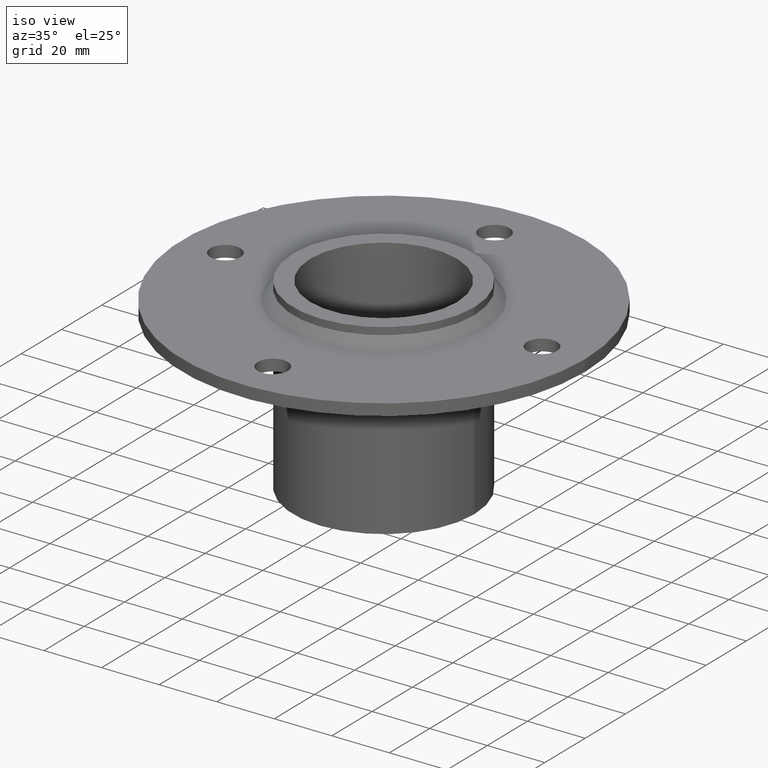
[diagram: clean part render]
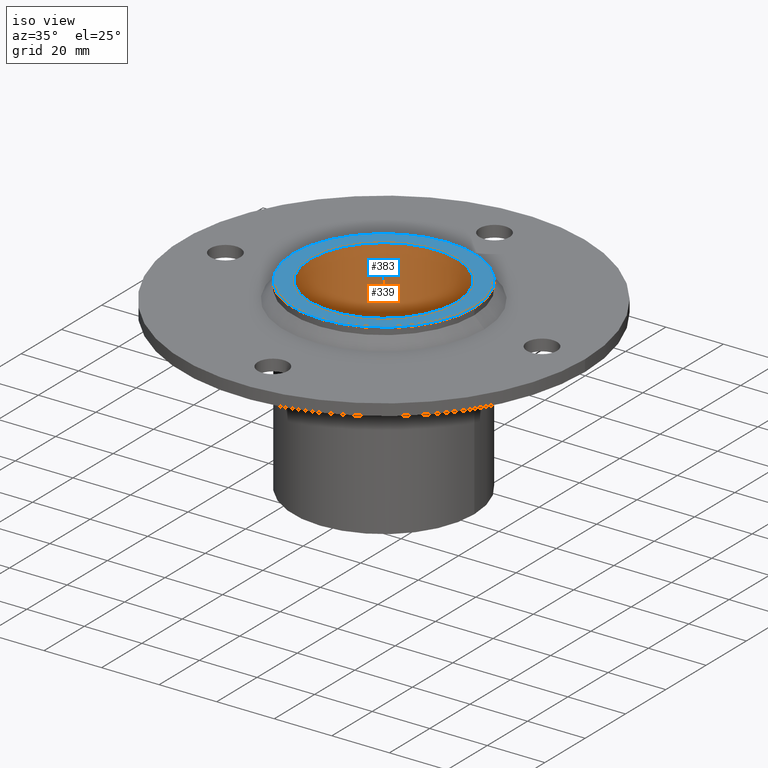
[diagram: same view with the hole feature highlighted: cylindrical wall and planar end face, labeled with their STEP entity ids]
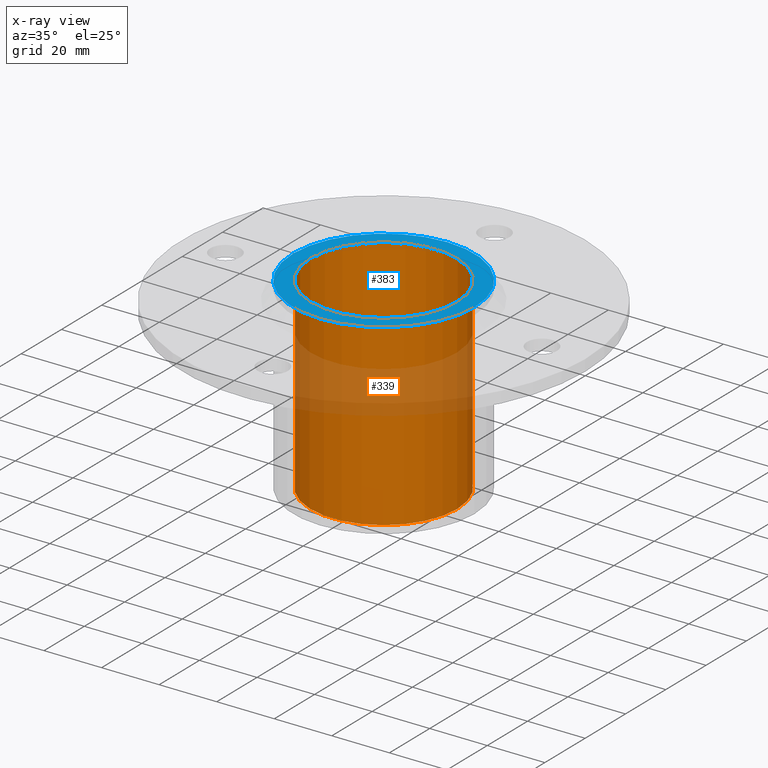
[diagram: x-ray of the same camera — body ghosted, the hole faces saturated]
A machine part, iso view. The highlighted faces form one hole feature of diameter 51 mm: the cylindrical wall (entity #339, orange) and its adjacent planar end face (entity #383, blue) — they share a circular edge in the B-rep.
The next image is the same camera in x-ray (body ghosted, the hole faces saturated) — the bore reads through the body.
Wall:
#312=CARTESIAN_POINT('',(0.0,0.0,-110.28599185753379));
#313=DIRECTION('',(0.0,0.0,1.0));
#314=DIRECTION('',(1.0,0.0,0.0));
#315=AXIS2_PLACEMENT_3D('',#312,#313,#314);
#316=CYLINDRICAL_SURFACE('',#315,25.500000000000007);
#317=CARTESIAN_POINT('',(-25.500000000000007,-3.122849E-015,-65.0));
#318=VERTEX_POINT('',#317);
#319=CARTESIAN_POINT('',(0.0,0.0,-65.0));
#320=DIRECTION('',(0.0,0.0,1.0));
#321=DIRECTION('',(1.0,0.0,0.0));
#322=AXIS2_PLACEMENT_3D('',#319,#320,#321);
#323=CIRCLE('',#322,25.500000000000007);
#324=EDGE_CURVE('',#318,#318,#323,.T.);
#325=ORIENTED_EDGE('',*,*,#324,.F.);
#326=EDGE_LOOP('',(#325));
#327=FACE_OUTER_BOUND('',#326,.T.);
#328=CARTESIAN_POINT('',(25.500000000000007,0.0,0.0));
#329=VERTEX_POINT('',#328);
#330=CARTESIAN_POINT('',(0.0,0.0,0.0));
#331=DIRECTION('',(0.0,0.0,-1.0));
#332=DIRECTION('',(1.0,0.0,0.0));
#333=AXIS2_PLACEMENT_3D('',#330,#331,#332);
#334=CIRCLE('',#333,25.500000000000007);
#335=EDGE_CURVE('',#329,#329,#334,.T.);
#336=ORIENTED_EDGE('',*,*,#335,.F.);
#337=EDGE_LOOP('',(#336));
#338=FACE_BOUND('',#337,.T.);
#339=ADVANCED_FACE('',(#327,#338),#316,.F.);
End face:
#245=CARTESIAN_POINT('',(31.500000000000014,3.857637E-015,0.0));
#246=VERTEX_POINT('',#245);
#247=CARTESIAN_POINT('',(0.0,0.0,0.0));
#248=DIRECTION('',(0.0,0.0,-1.0));
#249=DIRECTION('',(-1.0,0.0,0.0));
#250=AXIS2_PLACEMENT_3D('',#247,#248,#249);
#251=CIRCLE('',#250,31.500000000000014);
#252=EDGE_CURVE('',#246,#246,#251,.T.);
#328=CARTESIAN_POINT('',(25.500000000000007,0.0,0.0));
#329=VERTEX_POINT('',#328);
#330=CARTESIAN_POINT('',(0.0,0.0,0.0));
#331=DIRECTION('',(0.0,0.0,-1.0));
#332=DIRECTION('',(1.0,0.0,0.0));
#333=AXIS2_PLACEMENT_3D('',#330,#331,#332);
#334=CIRCLE('',#333,25.500000000000007);
#335=EDGE_CURVE('',#329,#329,#334,.T.);
#372=CARTESIAN_POINT('',(-2.201212E-015,0.0,0.0));
#373=DIRECTION('',(0.0,0.0,1.0));
#374=DIRECTION('',(1.0,0.0,0.0));
#375=AXIS2_PLACEMENT_3D('',#372,#373,#374);
#376=PLANE('',#375);
#377=ORIENTED_EDGE('',*,*,#252,.F.);
#378=EDGE_LOOP('',(#377));
#379=FACE_OUTER_BOUND('',#378,.T.);
#380=ORIENTED_EDGE('',*,*,#335,.T.);
#381=EDGE_LOOP('',(#380));
#382=FACE_BOUND('',#381,.T.);
#383=ADVANCED_FACE('',(#379,#382),#376,.T.);